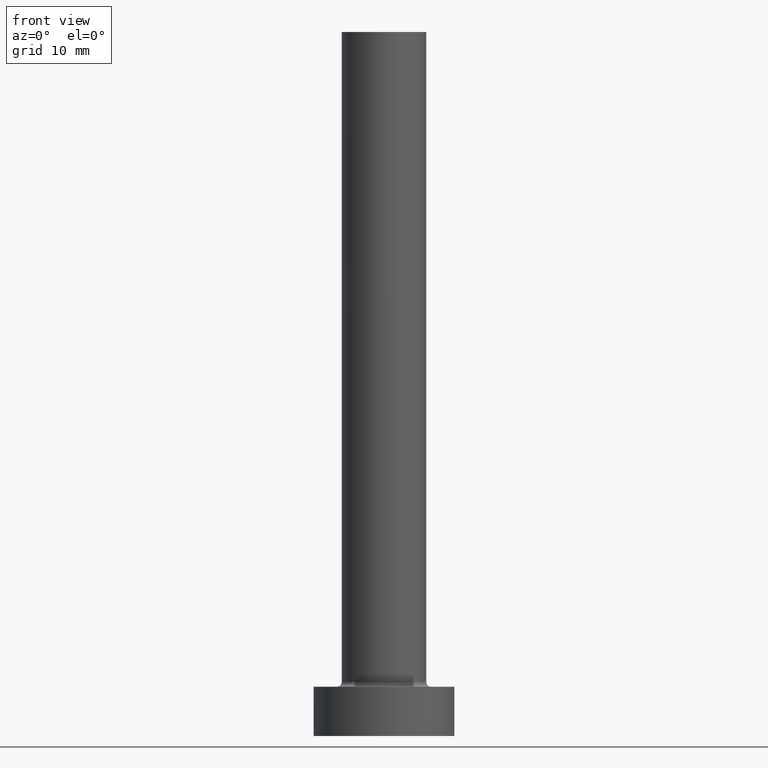
[diagram: clean part render]
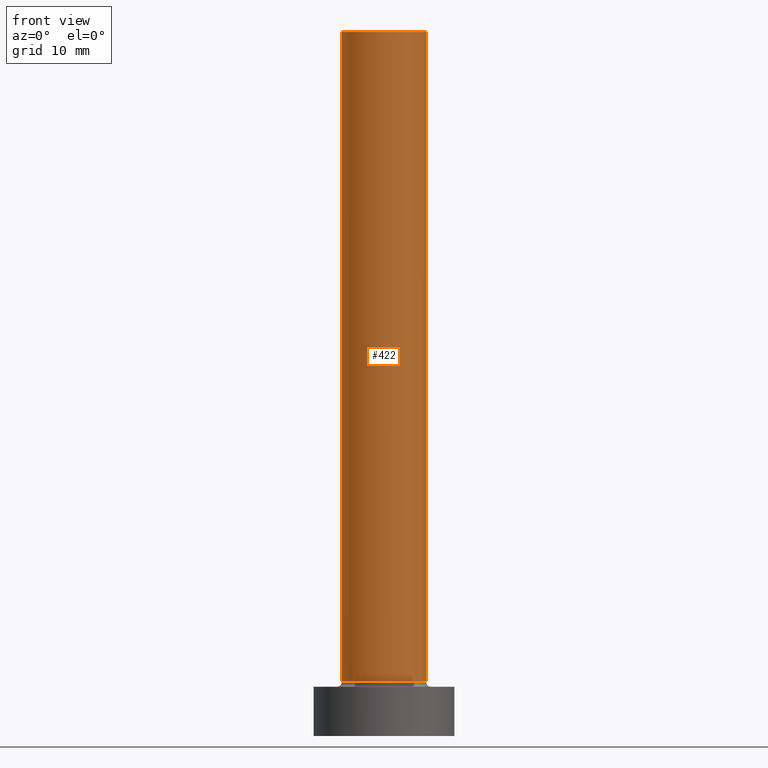
[diagram: same view with one face highlighted and labeled with its STEP entity id]
A machine part, front view. The second image highlights one B-rep face of the part: STEP entity #422.
In plain terms, the highlighted cylindrical surface (partial cylindrical patch) has radius 6 mm, axis along (-0, -0, -1).
Its self-contained STEP definition (entity closure, byte-faithful):
#16 = DIRECTION ( 'NONE',  ( 1.000000000000000000, 0.000000000000000000, 0.000000000000000000 ) ) ;
#28 = EDGE_CURVE ( 'NONE', #362, #140, #377, .T. ) ;
#34 = AXIS2_PLACEMENT_3D ( 'NONE', #60, #206, #384 ) ;
#45 = DIRECTION ( 'NONE',  ( 0.000000000000000000, 0.000000000000000000, 1.000000000000000000 ) ) ;
#55 = ORIENTED_EDGE ( 'NONE', *, *, #184, .T. ) ;
#60 = CARTESIAN_POINT ( 'NONE',  ( 0.000000000000000000, 0.000000000000000000, 100.0000000000000000 ) ) ;
#67 = VERTEX_POINT ( 'NONE', #229 ) ;
#86 = AXIS2_PLACEMENT_3D ( 'NONE', #207, #93, #353 ) ;
#91 = LINE ( 'NONE', #238, #361 ) ;
#93 = DIRECTION ( 'NONE',  ( 0.000000000000000000, 0.000000000000000000, 1.000000000000000000 ) ) ;
#104 = CARTESIAN_POINT ( 'NONE',  ( 6.000000000000000888, 7.347880794884119736E-16, 7.699999999999998401 ) ) ;
#106 = EDGE_CURVE ( 'NONE', #67, #391, #91, .T. ) ;
#124 = DIRECTION ( 'NONE',  ( -0.000000000000000000, -0.000000000000000000, -1.000000000000000000 ) ) ;
#140 = VERTEX_POINT ( 'NONE', #104 ) ;
#147 = ORIENTED_EDGE ( 'NONE', *, *, #331, .F. ) ;
#173 = EDGE_LOOP ( 'NONE', ( #458, #147, #371, #55 ) ) ;
#184 = EDGE_CURVE ( 'NONE', #391, #140, #444, .T. ) ;
#206 = DIRECTION ( 'NONE',  ( -0.000000000000000000, -0.000000000000000000, -1.000000000000000000 ) ) ;
#207 = CARTESIAN_POINT ( 'NONE',  ( 0.000000000000000000, 0.000000000000000000, 7.699999999999998401 ) ) ;
#229 = CARTESIAN_POINT ( 'NONE',  ( -6.000000000000000888, 0.000000000000000000, 100.0000000000000000 ) ) ;
#238 = CARTESIAN_POINT ( 'NONE',  ( -6.000000000000000888, 0.000000000000000000, 100.0000000000000000 ) ) ;
#264 = CARTESIAN_POINT ( 'NONE',  ( 0.000000000000000000, 0.000000000000000000, 100.0000000000000000 ) ) ;
#273 = CIRCLE ( 'NONE', #291, 6.000000000000000888 ) ;
#283 = CYLINDRICAL_SURFACE ( 'NONE', #34, 6.000000000000000888 ) ;
#291 = AXIS2_PLACEMENT_3D ( 'NONE', #264, #45, #16 ) ;
#307 = DIRECTION ( 'NONE',  ( -0.000000000000000000, -0.000000000000000000, -1.000000000000000000 ) ) ;
#308 = CARTESIAN_POINT ( 'NONE',  ( 6.000000000000000888, 7.347880794884119736E-16, 100.0000000000000000 ) ) ;
#331 = EDGE_CURVE ( 'NONE', #67, #362, #273, .T. ) ;
#353 = DIRECTION ( 'NONE',  ( 1.000000000000000000, 0.000000000000000000, 0.000000000000000000 ) ) ;
#361 = VECTOR ( 'NONE', #124, 1000.000000000000000 ) ;
#362 = VERTEX_POINT ( 'NONE', #308 ) ;
#370 = VECTOR ( 'NONE', #307, 1000.000000000000000 ) ;
#371 = ORIENTED_EDGE ( 'NONE', *, *, #106, .T. ) ;
#377 = LINE ( 'NONE', #411, #370 ) ;
#384 = DIRECTION ( 'NONE',  ( -1.000000000000000000, 0.000000000000000000, 0.000000000000000000 ) ) ;
#391 = VERTEX_POINT ( 'NONE', #440 ) ;
#410 = FACE_OUTER_BOUND ( 'NONE', #173, .T. ) ;
#411 = CARTESIAN_POINT ( 'NONE',  ( 6.000000000000000888, 7.347880794884119736E-16, 100.0000000000000000 ) ) ;
#422 = ADVANCED_FACE ( 'NONE', ( #410 ), #283, .T. ) ;
#440 = CARTESIAN_POINT ( 'NONE',  ( -6.000000000000000888, 0.000000000000000000, 7.699999999999998401 ) ) ;
#444 = CIRCLE ( 'NONE', #86, 6.000000000000000888 ) ;
#458 = ORIENTED_EDGE ( 'NONE', *, *, #28, .F. ) ;